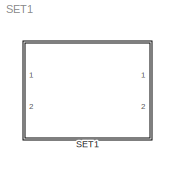
MODEL SET1
KIND model
CONFIG AbsTol = auto
CONFIG FixedStep = auto
CONFIG MaxStep = auto
CONFIG MinStep = auto
CONFIG RelTol = 1e-3
CONFIG Solver = ode45
CONFIG SolverMode = Auto
CONFIG StartTime = 0.0
CONFIG StopTime = 10.0
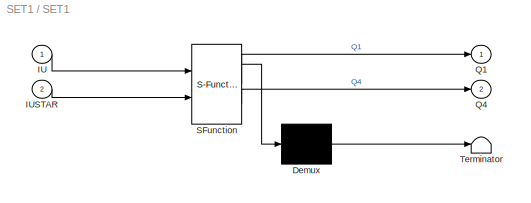
BLOCK [SubSystem] SET1
  MaskDescription = Stateflow diagram
  MaskDisplay = plot(sf('Private','sfblk','xIcon'),sf('Private','sfblk','yIcon'));text(0.5,0,sf('Private', 'sfblk', 'tIcon'),'HorizontalAl','Center','VerticalAl','Bottom');
  MaskIconFrame = off
  MaskIconOpaque = off
  MaskIconRotate = none
  MaskIconUnits = autoscale
  MaskSelfModifiable = on
  MaskType = Stateflow
  Ports = [2, 2]
  TreatAsAtomicUnit = off
BLOCK [Demux] SET1/ Demux 
  Outputs = 1
  Ports = [1, 1]
BLOCK [S-Function] SET1/ SFunction 
  FunctionName = sf_sfun
  PortCounts = [2 3]
  Ports = [2, 3]
  Tag = Stateflow S-Function SET1 1
BLOCK [Terminator] SET1/ Terminator 
BLOCK [Inport] SET1/IU
  PortDimensions = 1
BLOCK [Inport] SET1/IUSTAR
  Port = 2
  PortDimensions = 1
BLOCK [Outport] SET1/Q1
BLOCK [Outport] SET1/Q4
  Port = 2
LINE SET1/ Demux :1 -> SET1/ Terminator :1
LINE SET1/ SFunction :1 -> SET1/ Demux :1
LINE SET1/ SFunction :2 -> SET1/Q1:1
LINE SET1/ SFunction :3 -> SET1/Q4:1
LINE SET1/IU:1 -> SET1/ SFunction :1
LINE SET1/IUSTAR:1 -> SET1/ SFunction :2
CHART SET1 states=3 transitions=4
  STATE_LABEL 'A/'
  STATE_LABEL 'A1/\\nduring:Q1=1;Q4=0;'
  STATE_LABEL 'A2/\\nduring:Q4=1;Q1=0;'
